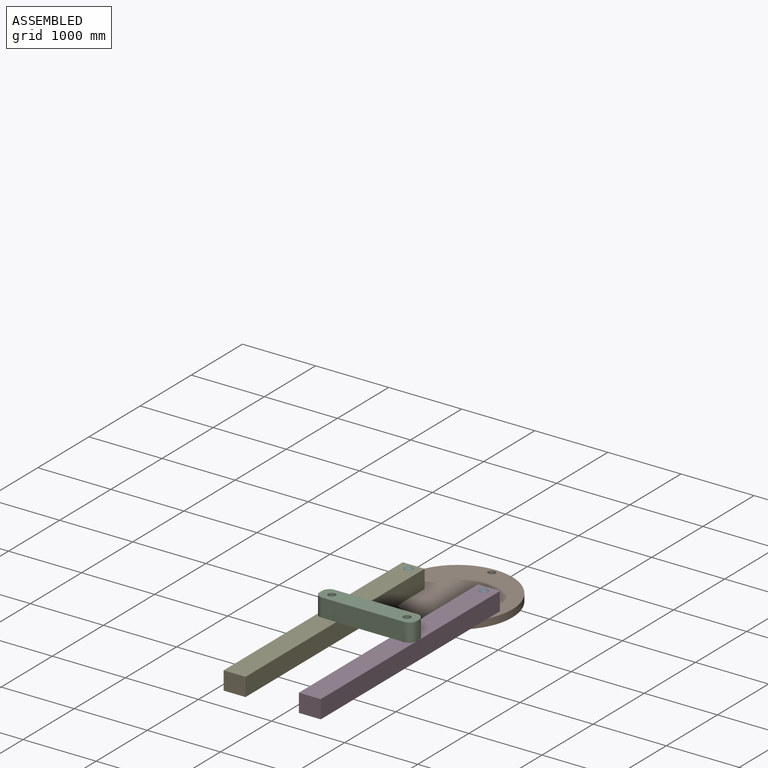
[diagram: assembled view]
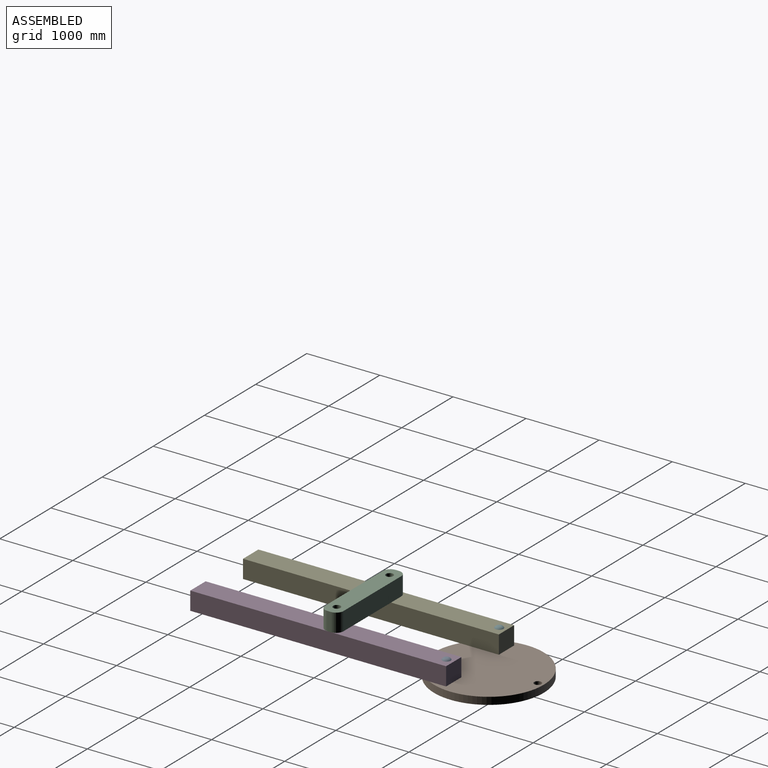
[diagram: assembled view, second angle]
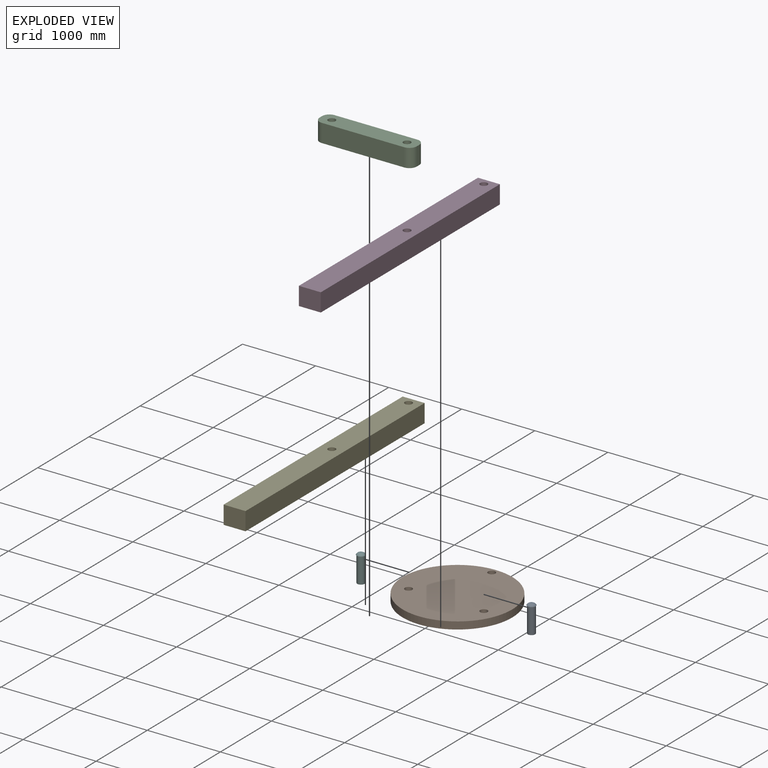
[diagram: exploded view]
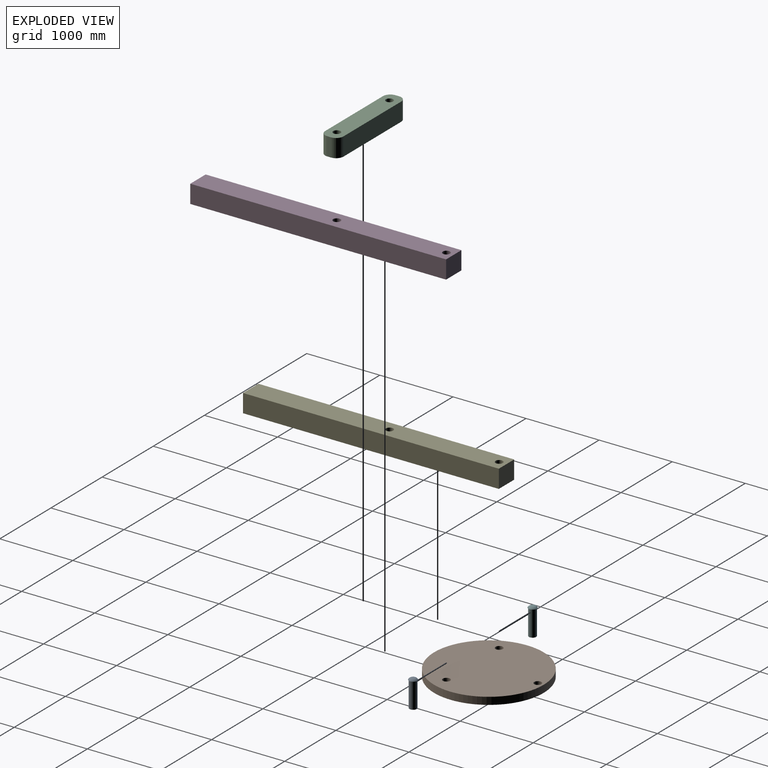
[diagram: exploded view, second angle]
ASSEMBLY  parts=6 mates=5
PART A: 5 faces, bbox 114.7x114.7x375 mm
  f0: cylinder r=50mm len=350mm, axis (0,0,-1), area 109955.7mm2, adj f1,f3
  f1: plane 100x100mm, normal (0,0,-1), area 7854mm2, adj f0
  f2: plane 28.09x28.09mm, normal (0,0,1), area 619.7mm2, adj f4
  f3: plane 114.69x114.69mm, normal (0,0,-1), area 2477.3mm2, adj f0,f4
  f4: torus R=14.04mm, axis (0,0,-1), area 12474.5mm2, adj f2,f3
PART B: 6 faces, bbox 1500x1500x100 mm
  f0: cylinder r=50mm len=100mm, axis (0,0,-1), area 31415.9mm2, adj f4,f5
  f1: cylinder r=50mm len=100mm, axis (0,0,-1), area 31415.9mm2, adj f4,f5
  f2: cylinder r=50mm len=100mm, axis (0,0,-1), area 31415.9mm2, adj f4,f5
  f3: cylinder r=750mm len=1500mm, axis (0,0,-1), area 471238.9mm2, adj f4,f5
  f4: plane 1500x1500mm, normal (0,0,1), area 1743583.9mm2, adj f0,f1,f2,f3
  f5: plane 1500x1500mm, normal (0,0,-1), area 1743583.9mm2, adj f0,f1,f2,f3
PART C: 12 faces, bbox 1330x250x250 mm
  f0: plane 1130x250mm, normal (0,1,0), area 282500mm2, adj f4,f5,f8,f11
  f1: plane 250x50mm, normal (-1,0,0), area 12500mm2, adj f4,f5,f10,f11
  f2: plane 1130x250mm, normal (0,-1,0), area 282500mm2, adj f4,f5,f9,f10
  f3: plane 250x50mm, normal (1,0,0), area 12500mm2, adj f4,f5,f8,f9
  f4: plane 1330x250mm, normal (0,0,1), area 308208mm2, adj f0,f1,f2,f3,f6,f7,f8,f9
  f5: plane 1330x250mm, normal (0,0,-1), area 308208mm2, adj f0,f1,f2,f3,f6,f7,f8,f9
  f6: cylinder r=50mm len=250mm, axis (0,0,1), area 78539.8mm2, adj f4,f5
  f7: cylinder r=50mm len=250mm, axis (0,0,1), area 78539.8mm2, adj f4,f5
  f8: cylinder r=100mm len=250mm, axis (0,0,-1), area 39269.9mm2, adj f0,f3,f4,f5
  f9: cylinder r=100mm len=250mm, axis (0,0,1), area 39269.9mm2, adj f2,f3,f4,f5
  f10: cylinder r=100mm len=250mm, axis (0,0,-1), area 39269.9mm2, adj f1,f2,f4,f5
  f11: cylinder r=100mm len=250mm, axis (0,0,1), area 39269.9mm2, adj f0,f1,f4,f5
PART D: 8 faces, bbox 3500x250x300 mm
  f0: plane 3500x300mm, normal (0,-1,0), area 1034292mm2, adj f1,f3,f4,f5,f6,f7
  f1: plane 300x250mm, normal (1,0,0), area 75000mm2, adj f0,f2,f4,f5
  f2: plane 3500x300mm, normal (0,1,0), area 1034292mm2, adj f1,f3,f4,f5,f6,f7
  f3: plane 300x250mm, normal (-1,0,0), area 75000mm2, adj f0,f2,f4,f5
  f4: plane 3500x250mm, normal (0,0,1), area 875000mm2, adj f0,f1,f2,f3
  f5: plane 3500x250mm, normal (0,0,-1), area 875000mm2, adj f0,f1,f2,f3
  f6: cylinder r=50mm len=250mm, axis (0,1,0), area 78539.8mm2, adj f0,f2
  f7: cylinder r=50mm len=250mm, axis (0,1,0), area 78539.8mm2, adj f0,f2
PART E: same geometry as D
PART F: same geometry as A
PLACE A t=(1486.46,1453.72,-284.83)mm
PLACE B t=(971.5,1673.75,-284.83)mm
PLACE C rot(axis=(1,0,0),180deg) t=(971.29,-45.7,315.17)mm
PLACE D rot(axis=(-0.58,-0.58,0.58),120deg) t=(1636.46,-196.28,-59.83)mm
PLACE E rot(axis=(0.58,0.58,0.58),120deg) t=(306.29,-195.7,-59.83)mm
PLACE F t=(456.29,1454.3,-284.83)mm
MATE fastened A.f0 <-> B.f1  axis (0,0,-1) through (1486.46,1453.72,-284.83)mm
MATE fastened E.f6 <-> B.f0  axis (0,0,-1) through (456.29,1454.3,-184.83)mm
MATE fastened F.f0 <-> B.f0  axis (0,0,-1) through (456.29,1454.3,-284.83)mm
MATE fastened D.f6 <-> B.f1  axis (0,0,-1) through (1486.46,1453.72,-184.83)mm
MATE fastened C.f7 <-> E.f7  axis (0,0,-1) through (456.29,-45.7,65.17)mm
